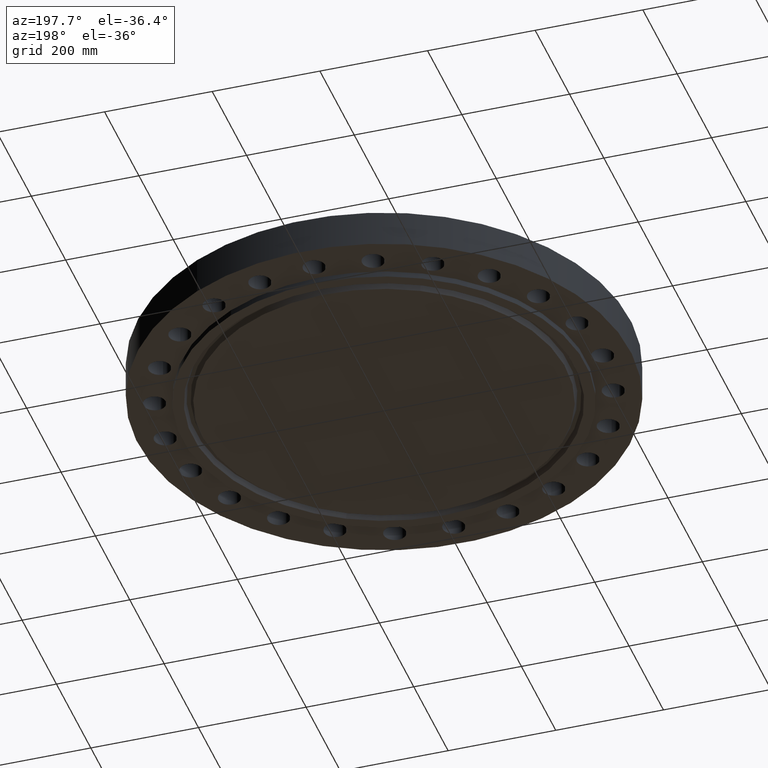
[diagram: clean part render]
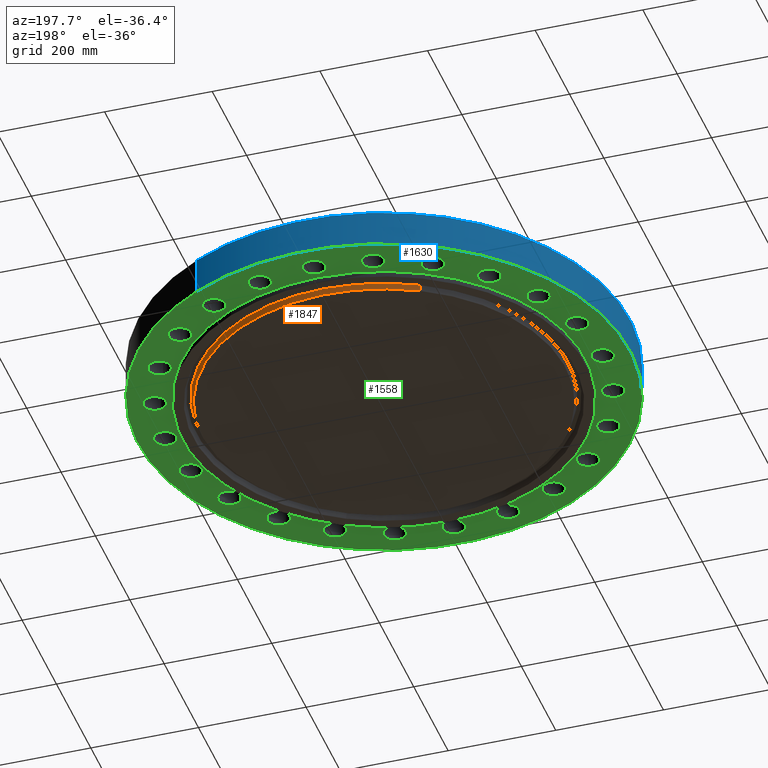
[diagram: same view with three faces highlighted in distinct colors, each labeled with its STEP entity id]
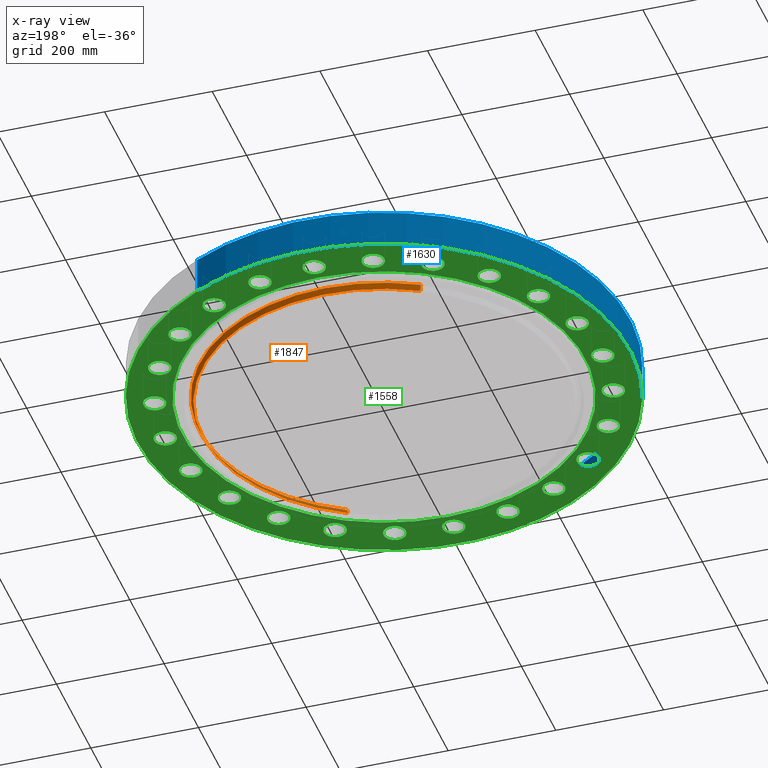
[diagram: x-ray of the same camera — body ghosted, the three highlighted faces saturated]
A machine part, auxiliary view with three faces highlighted in distinct colors.
The next image is the same camera in x-ray (body ghosted, the three faces saturated) — at least one of them is partly hidden behind the body in this view.
Their STEP definitions:

[orange] entity #1847 — the highlighted conical surface has half-angle 23 deg.
#42=AXIS2_PLACEMENT_3D('Circle Axis2P3D',#40,#41,$) ;
#1797=AXIS2_PLACEMENT_3D('Circle Axis2P3D',#1795,#1796,$) ;
#1829=AXIS2_PLACEMENT_3D('Cone Axis2P3D',#1826,#1827,#1828) ;
#40=CARTESIAN_POINT('Axis2P3D Location',(1.1189649382E-015,1.67844740731E-015,-0.437500000002)) ;
#44=CARTESIAN_POINT('Vertex',(-6.37484947301,11.6690836881,-0.437500000002)) ;
#46=CARTESIAN_POINT('Vertex',(6.37484947301,-11.6690836881,-0.437500000002)) ;
#1792=CARTESIAN_POINT('Vertex',(6.45613320915,-11.8178725691,-0.0380793044696)) ;
#1795=CARTESIAN_POINT('Axis2P3D Location',(0.,0.,-0.0380793044696)) ;
#1799=CARTESIAN_POINT('Vertex',(-6.45613320915,11.8178725691,-0.0380793044696)) ;
#1826=CARTESIAN_POINT('Axis2P3D Location',(0.,0.,-0.497500000002)) ;
#1831=CARTESIAN_POINT('Line Origine',(-6.41549134108,11.7434781286,-0.237789652236)) ;
#1836=CARTESIAN_POINT('Line Origine',(6.41549134108,-11.7434781286,-0.237789652236)) ;
#41=DIRECTION('Axis2P3D Direction',(0.,0.,-0.0393700787402)) ;
#1796=DIRECTION('Axis2P3D Direction',(0.,0.,0.0393700787402)) ;
#1827=DIRECTION('Axis2P3D Direction',(0.,0.,0.0393700787402)) ;
#1828=DIRECTION('Axis2P3D XDirection',(-0.0188750212049,0.0345504945626,0.)) ;
#1832=DIRECTION('Vector Direction',(-0.00737505833565,0.0134999537303,0.0362403485611)) ;
#1837=DIRECTION('Vector Direction',(0.00737505833565,-0.0134999537303,0.0362403485611)) ;
#1833=VECTOR('Line Direction',#1832,0.0393700787402) ;
#1838=VECTOR('Line Direction',#1837,0.0393700787402) ;
#1842=ORIENTED_EDGE('',*,*,#1835,.F.) ;
#1843=ORIENTED_EDGE('',*,*,#1801,.F.) ;
#1844=ORIENTED_EDGE('',*,*,#1840,.T.) ;
#1845=ORIENTED_EDGE('',*,*,#48,.F.) ;
#1847=ADVANCED_FACE('PartBody',(#1846),#1830,.T.) ;
#43=CIRCLE('generated circle',#42,13.2968500001) ;
#1798=CIRCLE('generated circle',#1797,13.4663940264) ;
#1830=CONICAL_SURFACE('Cone',#1829,13.2713815111,0.401425727959) ;
#48=EDGE_CURVE('',#45,#47,#43,.T.) ;
#1801=EDGE_CURVE('',#1793,#1800,#1798,.T.) ;
#1835=EDGE_CURVE('',#1800,#45,#1834,.F.) ;
#1840=EDGE_CURVE('',#1793,#47,#1839,.F.) ;
#1841=EDGE_LOOP('',(#1842,#1843,#1844,#1845)) ;
#1846=FACE_OUTER_BOUND('',#1841,.T.) ;
#1834=LINE('Line',#1831,#1833) ;
#1839=LINE('Line',#1836,#1838) ;
#45=VERTEX_POINT('',#44) ;
#47=VERTEX_POINT('',#46) ;
#1793=VERTEX_POINT('',#1792) ;
#1800=VERTEX_POINT('',#1799) ;

[blue] entity #1630 — the highlighted cylindrical surface (partial cylindrical patch) has radius 457.2 mm, axis along (0, 0, -1).
#1414=AXIS2_PLACEMENT_3D('Circle Axis2P3D',#1412,#1413,$) ;
#1591=AXIS2_PLACEMENT_3D('Cylinder Axis2P3D',#1588,#1589,#1590) ;
#1621=AXIS2_PLACEMENT_3D('Circle Axis2P3D',#1619,#1620,$) ;
#1412=CARTESIAN_POINT('Axis2P3D Location',(0.,0.,0.)) ;
#1416=CARTESIAN_POINT('Vertex',(-8.62965969491,-15.7964861141,1.39870617276E-015)) ;
#1418=CARTESIAN_POINT('Vertex',(8.62965969491,15.7964861141,1.39870617276E-015)) ;
#1588=CARTESIAN_POINT('Axis2P3D Location',(0.,0.,1.12625)) ;
#1593=CARTESIAN_POINT('Line Origine',(8.62965969491,15.7964861141,1.34500000001)) ;
#1597=CARTESIAN_POINT('Vertex',(8.62965969491,15.7964861141,2.69000000001)) ;
#1604=CARTESIAN_POINT('Vertex',(-8.62965969491,-15.7964861141,2.69000000001)) ;
#1607=CARTESIAN_POINT('Line Origine',(-8.62965969491,-15.7964861141,1.34500000001)) ;
#1619=CARTESIAN_POINT('Axis2P3D Location',(0.,0.,2.69000000001)) ;
#1413=DIRECTION('Axis2P3D Direction',(0.,0.,-0.0393700787402)) ;
#1589=DIRECTION('Axis2P3D Direction',(0.,0.,-0.0393700787402)) ;
#1590=DIRECTION('Axis2P3D XDirection',(-0.0188750212049,-0.0345504945626,0.)) ;
#1594=DIRECTION('Vector Direction',(0.,0.,-0.0393700787402)) ;
#1608=DIRECTION('Vector Direction',(0.,0.,-0.0393700787402)) ;
#1620=DIRECTION('Axis2P3D Direction',(0.,0.,-0.0393700787402)) ;
#1595=VECTOR('Line Direction',#1594,0.0393700787402) ;
#1609=VECTOR('Line Direction',#1608,0.0393700787402) ;
#1625=ORIENTED_EDGE('',*,*,#1420,.F.) ;
#1626=ORIENTED_EDGE('',*,*,#1611,.T.) ;
#1627=ORIENTED_EDGE('',*,*,#1623,.T.) ;
#1628=ORIENTED_EDGE('',*,*,#1599,.F.) ;
#1630=ADVANCED_FACE('PartBody',(#1629),#1592,.T.) ;
#1415=CIRCLE('generated circle',#1414,18.0000000001) ;
#1622=CIRCLE('generated circle',#1621,18.0000000001) ;
#1592=CYLINDRICAL_SURFACE('generated cylinder',#1591,18.0000000001) ;
#1420=EDGE_CURVE('',#1417,#1419,#1415,.T.) ;
#1599=EDGE_CURVE('',#1419,#1598,#1596,.F.) ;
#1611=EDGE_CURVE('',#1417,#1605,#1610,.F.) ;
#1623=EDGE_CURVE('',#1605,#1598,#1622,.T.) ;
#1624=EDGE_LOOP('',(#1625,#1626,#1627,#1628)) ;
#1629=FACE_OUTER_BOUND('',#1624,.T.) ;
#1596=LINE('Line',#1593,#1595) ;
#1610=LINE('Line',#1607,#1609) ;
#1417=VERTEX_POINT('',#1416) ;
#1419=VERTEX_POINT('',#1418) ;
#1598=VERTEX_POINT('',#1597) ;
#1605=VERTEX_POINT('',#1604) ;

[green] entity #1558 — the highlighted planar face has unit normal (0, 0, -1).
#112=AXIS2_PLACEMENT_3D('Circle Axis2P3D',#110,#111,$) ;
#138=AXIS2_PLACEMENT_3D('Circle Axis2P3D',#136,#137,$) ;
#169=AXIS2_PLACEMENT_3D('Circle Axis2P3D',#167,#168,$) ;
#195=AXIS2_PLACEMENT_3D('Circle Axis2P3D',#193,#194,$) ;
#226=AXIS2_PLACEMENT_3D('Circle Axis2P3D',#224,#225,$) ;
#252=AXIS2_PLACEMENT_3D('Circle Axis2P3D',#250,#251,$) ;
#283=AXIS2_PLACEMENT_3D('Circle Axis2P3D',#281,#282,$) ;
#309=AXIS2_PLACEMENT_3D('Circle Axis2P3D',#307,#308,$) ;
#340=AXIS2_PLACEMENT_3D('Circle Axis2P3D',#338,#339,$) ;
#366=AXIS2_PLACEMENT_3D('Circle Axis2P3D',#364,#365,$) ;
#397=AXIS2_PLACEMENT_3D('Circle Axis2P3D',#395,#396,$) ;
#423=AXIS2_PLACEMENT_3D('Circle Axis2P3D',#421,#422,$) ;
#454=AXIS2_PLACEMENT_3D('Circle Axis2P3D',#452,#453,$) ;
#480=AXIS2_PLACEMENT_3D('Circle Axis2P3D',#478,#479,$) ;
#511=AXIS2_PLACEMENT_3D('Circle Axis2P3D',#509,#510,$) ;
#537=AXIS2_PLACEMENT_3D('Circle Axis2P3D',#535,#536,$) ;
#568=AXIS2_PLACEMENT_3D('Circle Axis2P3D',#566,#567,$) ;
#594=AXIS2_PLACEMENT_3D('Circle Axis2P3D',#592,#593,$) ;
#625=AXIS2_PLACEMENT_3D('Circle Axis2P3D',#623,#624,$) ;
#651=AXIS2_PLACEMENT_3D('Circle Axis2P3D',#649,#650,$) ;
#682=AXIS2_PLACEMENT_3D('Circle Axis2P3D',#680,#681,$) ;
#708=AXIS2_PLACEMENT_3D('Circle Axis2P3D',#706,#707,$) ;
#739=AXIS2_PLACEMENT_3D('Circle Axis2P3D',#737,#738,$) ;
#765=AXIS2_PLACEMENT_3D('Circle Axis2P3D',#763,#764,$) ;
#796=AXIS2_PLACEMENT_3D('Circle Axis2P3D',#794,#795,$) ;
#822=AXIS2_PLACEMENT_3D('Circle Axis2P3D',#820,#821,$) ;
#853=AXIS2_PLACEMENT_3D('Circle Axis2P3D',#851,#852,$) ;
#879=AXIS2_PLACEMENT_3D('Circle Axis2P3D',#877,#878,$) ;
#910=AXIS2_PLACEMENT_3D('Circle Axis2P3D',#908,#909,$) ;
#936=AXIS2_PLACEMENT_3D('Circle Axis2P3D',#934,#935,$) ;
#967=AXIS2_PLACEMENT_3D('Circle Axis2P3D',#965,#966,$) ;
#993=AXIS2_PLACEMENT_3D('Circle Axis2P3D',#991,#992,$) ;
#1024=AXIS2_PLACEMENT_3D('Circle Axis2P3D',#1022,#1023,$) ;
#1050=AXIS2_PLACEMENT_3D('Circle Axis2P3D',#1048,#1049,$) ;
#1081=AXIS2_PLACEMENT_3D('Circle Axis2P3D',#1079,#1080,$) ;
#1107=AXIS2_PLACEMENT_3D('Circle Axis2P3D',#1105,#1106,$) ;
#1138=AXIS2_PLACEMENT_3D('Circle Axis2P3D',#1136,#1137,$) ;
#1164=AXIS2_PLACEMENT_3D('Circle Axis2P3D',#1162,#1163,$) ;
#1195=AXIS2_PLACEMENT_3D('Circle Axis2P3D',#1193,#1194,$) ;
#1221=AXIS2_PLACEMENT_3D('Circle Axis2P3D',#1219,#1220,$) ;
#1252=AXIS2_PLACEMENT_3D('Circle Axis2P3D',#1250,#1251,$) ;
#1278=AXIS2_PLACEMENT_3D('Circle Axis2P3D',#1276,#1277,$) ;
#1309=AXIS2_PLACEMENT_3D('Circle Axis2P3D',#1307,#1308,$) ;
#1335=AXIS2_PLACEMENT_3D('Circle Axis2P3D',#1333,#1334,$) ;
#1366=AXIS2_PLACEMENT_3D('Circle Axis2P3D',#1364,#1365,$) ;
#1392=AXIS2_PLACEMENT_3D('Circle Axis2P3D',#1390,#1391,$) ;
#1410=AXIS2_PLACEMENT_3D('Plane Axis2P3D',#1407,#1408,#1409) ;
#1414=AXIS2_PLACEMENT_3D('Circle Axis2P3D',#1412,#1413,$) ;
#1423=AXIS2_PLACEMENT_3D('Circle Axis2P3D',#1421,#1422,$) ;
#1432=AXIS2_PLACEMENT_3D('Circle Axis2P3D',#1430,#1431,$) ;
#1441=AXIS2_PLACEMENT_3D('Circle Axis2P3D',#1439,#1440,$) ;
#1450=AXIS2_PLACEMENT_3D('Circle Axis2P3D',#1448,#1449,$) ;
#1459=AXIS2_PLACEMENT_3D('Circle Axis2P3D',#1457,#1458,$) ;
#105=CARTESIAN_POINT('Vertex',(4.73083481058,14.8922801797,0.)) ;
#110=CARTESIAN_POINT('Axis2P3D Location',(4.14110472166,15.4548132207,0.)) ;
#114=CARTESIAN_POINT('Vertex',(3.55137463273,16.0173462617,0.)) ;
#136=CARTESIAN_POINT('Axis2P3D Location',(4.14110472166,15.4548132207,0.)) ;
#162=CARTESIAN_POINT('Vertex',(-0.715229787944,-15.6092681861,0.)) ;
#167=CARTESIAN_POINT('Axis2P3D Location',(1.95943487864E-015,-16.0000000001,0.)) ;
#171=CARTESIAN_POINT('Vertex',(0.715229787944,-16.390731814,0.)) ;
#193=CARTESIAN_POINT('Axis2P3D Location',(1.95943487864E-015,-16.0000000001,0.)) ;
#219=CARTESIAN_POINT('Vertex',(-3.34911696277,15.2625103612,0.)) ;
#224=CARTESIAN_POINT('Axis2P3D Location',(-4.14110472166,15.4548132207,0.)) ;
#228=CARTESIAN_POINT('Vertex',(-4.93309248054,15.6471160802,0.)) ;
#250=CARTESIAN_POINT('Axis2P3D Location',(-4.14110472166,15.4548132207,0.)) ;
#276=CARTESIAN_POINT('Vertex',(3.34911696277,-15.2625103612,0.)) ;
#281=CARTESIAN_POINT('Axis2P3D Location',(4.14110472166,-15.4548132207,0.)) ;
#285=CARTESIAN_POINT('Vertex',(4.93309248054,-15.6471160802,0.)) ;
#307=CARTESIAN_POINT('Axis2P3D Location',(4.14110472166,-15.4548132207,0.)) ;
#333=CARTESIAN_POINT('Vertex',(-7.18522692715,13.8756376776,0.)) ;
#338=CARTESIAN_POINT('Axis2P3D Location',(-8.00000000003,13.8564064606,0.)) ;
#342=CARTESIAN_POINT('Vertex',(-8.81477307292,13.8371752436,0.)) ;
#364=CARTESIAN_POINT('Axis2P3D Location',(-8.00000000003,13.8564064606,0.)) ;
#390=CARTESIAN_POINT('Vertex',(7.18522692715,-13.8756376776,0.)) ;
#395=CARTESIAN_POINT('Axis2P3D Location',(8.00000000003,-13.8564064606,0.)) ;
#399=CARTESIAN_POINT('Vertex',(8.81477307292,-13.8371752436,0.)) ;
#421=CARTESIAN_POINT('Axis2P3D Location',(8.00000000003,-13.8564064606,0.)) ;
#447=CARTESIAN_POINT('Vertex',(-10.5316755506,11.5431632169,0.)) ;
#452=CARTESIAN_POINT('Axis2P3D Location',(-11.313708499,11.313708499,0.)) ;
#456=CARTESIAN_POINT('Vertex',(-12.0957414475,11.0842537811,0.)) ;
#478=CARTESIAN_POINT('Axis2P3D Location',(-11.313708499,11.313708499,0.)) ;
#504=CARTESIAN_POINT('Vertex',(10.5316755506,-11.5431632169,0.)) ;
#509=CARTESIAN_POINT('Axis2P3D Location',(11.313708499,-11.313708499,0.)) ;
#513=CARTESIAN_POINT('Vertex',(12.0957414475,-11.0842537811,0.)) ;
#535=CARTESIAN_POINT('Axis2P3D Location',(11.313708499,-11.313708499,0.)) ;
#561=CARTESIAN_POINT('Vertex',(-13.1604078897,8.42404125895,0.)) ;
#566=CARTESIAN_POINT('Axis2P3D Location',(-13.8564064606,8.00000000003,0.)) ;
#570=CARTESIAN_POINT('Vertex',(-14.5524050315,7.57595874111,0.)) ;
#592=CARTESIAN_POINT('Axis2P3D Location',(-13.8564064606,8.00000000003,0.)) ;
#618=CARTESIAN_POINT('Vertex',(13.1604078897,-8.42404125895,-2.23792987641E-015)) ;
#623=CARTESIAN_POINT('Axis2P3D Location',(13.8564064606,-8.00000000003,-2.23792987641E-015)) ;
#627=CARTESIAN_POINT('Vertex',(14.5524050315,-7.57595874111,0.)) ;
#649=CARTESIAN_POINT('Axis2P3D Location',(13.8564064606,-8.00000000003,-2.23792987641E-015)) ;
#675=CARTESIAN_POINT('Vertex',(-14.8922801797,4.73083481058,0.)) ;
#680=CARTESIAN_POINT('Axis2P3D Location',(-15.4548132207,4.14110472166,0.)) ;
#684=CARTESIAN_POINT('Vertex',(-16.0173462617,3.55137463273,0.)) ;
#706=CARTESIAN_POINT('Axis2P3D Location',(-15.4548132207,4.14110472166,0.)) ;
#732=CARTESIAN_POINT('Vertex',(14.8922801797,-4.73083481058,-1.1189649382E-015)) ;
#737=CARTESIAN_POINT('Axis2P3D Location',(15.4548132207,-4.14110472166,-1.1189649382E-015)) ;
#741=CARTESIAN_POINT('Vertex',(16.0173462617,-3.55137463273,0.)) ;
#763=CARTESIAN_POINT('Axis2P3D Location',(15.4548132207,-4.14110472166,-1.1189649382E-015)) ;
#789=CARTESIAN_POINT('Vertex',(-15.6092681861,0.715229787944,0.)) ;
#794=CARTESIAN_POINT('Axis2P3D Location',(-16.0000000001,-7.01222441556E-016,0.)) ;
#798=CARTESIAN_POINT('Vertex',(-16.390731814,-0.715229787944,0.)) ;
#820=CARTESIAN_POINT('Axis2P3D Location',(-16.0000000001,-7.01222441556E-016,0.)) ;
#846=CARTESIAN_POINT('Vertex',(15.6092681861,-0.715229787944,0.)) ;
#851=CARTESIAN_POINT('Axis2P3D Location',(16.0000000001,9.79717439322E-016,0.)) ;
#855=CARTESIAN_POINT('Vertex',(16.390731814,0.715229787944,0.)) ;
#877=CARTESIAN_POINT('Axis2P3D Location',(16.0000000001,9.79717439322E-016,0.)) ;
#903=CARTESIAN_POINT('Vertex',(-15.2625103612,-3.34911696277,0.)) ;
#908=CARTESIAN_POINT('Axis2P3D Location',(-15.4548132207,-4.14110472166,0.)) ;
#912=CARTESIAN_POINT('Vertex',(-15.6471160802,-4.93309248054,0.)) ;
#934=CARTESIAN_POINT('Axis2P3D Location',(-15.4548132207,-4.14110472166,0.)) ;
#960=CARTESIAN_POINT('Vertex',(15.2625103612,3.34911696277,0.)) ;
#965=CARTESIAN_POINT('Axis2P3D Location',(15.4548132207,4.14110472166,0.)) ;
#969=CARTESIAN_POINT('Vertex',(15.6471160802,4.93309248054,0.)) ;
#991=CARTESIAN_POINT('Axis2P3D Location',(15.4548132207,4.14110472166,0.)) ;
#1017=CARTESIAN_POINT('Vertex',(-13.8756376776,-7.18522692715,0.)) ;
#1022=CARTESIAN_POINT('Axis2P3D Location',(-13.8564064606,-8.00000000003,0.)) ;
#1026=CARTESIAN_POINT('Vertex',(-13.8371752436,-8.81477307292,0.)) ;
#1048=CARTESIAN_POINT('Axis2P3D Location',(-13.8564064606,-8.00000000003,0.)) ;
#1074=CARTESIAN_POINT('Vertex',(13.8756376776,7.18522692715,0.)) ;
#1079=CARTESIAN_POINT('Axis2P3D Location',(13.8564064606,8.00000000003,0.)) ;
#1083=CARTESIAN_POINT('Vertex',(13.8371752436,8.81477307292,0.)) ;
#1105=CARTESIAN_POINT('Axis2P3D Location',(13.8564064606,8.00000000003,0.)) ;
#1131=CARTESIAN_POINT('Vertex',(-11.5431632169,-10.5316755506,0.)) ;
#1136=CARTESIAN_POINT('Axis2P3D Location',(-11.313708499,-11.313708499,0.)) ;
#1140=CARTESIAN_POINT('Vertex',(-11.0842537811,-12.0957414475,0.)) ;
#1162=CARTESIAN_POINT('Axis2P3D Location',(-11.313708499,-11.313708499,0.)) ;
#1188=CARTESIAN_POINT('Vertex',(11.5431632169,10.5316755506,0.)) ;
#1193=CARTESIAN_POINT('Axis2P3D Location',(11.313708499,11.313708499,0.)) ;
#1197=CARTESIAN_POINT('Vertex',(11.0842537811,12.0957414475,0.)) ;
#1219=CARTESIAN_POINT('Axis2P3D Location',(11.313708499,11.313708499,0.)) ;
#1245=CARTESIAN_POINT('Vertex',(-8.42404125895,-13.1604078897,0.)) ;
#1250=CARTESIAN_POINT('Axis2P3D Location',(-8.00000000003,-13.8564064606,0.)) ;
#1254=CARTESIAN_POINT('Vertex',(-7.57595874111,-14.5524050315,0.)) ;
#1276=CARTESIAN_POINT('Axis2P3D Location',(-8.00000000003,-13.8564064606,0.)) ;
#1302=CARTESIAN_POINT('Vertex',(8.42404125895,13.1604078897,0.)) ;
#1307=CARTESIAN_POINT('Axis2P3D Location',(8.00000000003,13.8564064606,0.)) ;
#1311=CARTESIAN_POINT('Vertex',(7.57595874111,14.5524050315,0.)) ;
#1333=CARTESIAN_POINT('Axis2P3D Location',(8.00000000003,13.8564064606,0.)) ;
#1359=CARTESIAN_POINT('Vertex',(-4.73083481058,-14.8922801797,0.)) ;
#1364=CARTESIAN_POINT('Axis2P3D Location',(-4.14110472166,-15.4548132207,0.)) ;
#1368=CARTESIAN_POINT('Vertex',(-3.55137463273,-16.0173462617,0.)) ;
#1390=CARTESIAN_POINT('Axis2P3D Location',(-4.14110472166,-15.4548132207,0.)) ;
#1407=CARTESIAN_POINT('Axis2P3D Location',(0.,14.7500000001,0.)) ;
#1412=CARTESIAN_POINT('Axis2P3D Location',(0.,0.,0.)) ;
#1416=CARTESIAN_POINT('Vertex',(-8.62965969491,-15.7964861141,1.39870617276E-015)) ;
#1418=CARTESIAN_POINT('Vertex',(8.62965969491,15.7964861141,1.39870617276E-015)) ;
#1421=CARTESIAN_POINT('Axis2P3D Location',(0.,0.,0.)) ;
#1430=CARTESIAN_POINT('Axis2P3D Location',(3.84644197508E-016,16.0000000001,0.)) ;
#1434=CARTESIAN_POINT('Vertex',(0.715229787944,15.6092681861,0.)) ;
#1436=CARTESIAN_POINT('Vertex',(-0.715229787944,16.390731814,0.)) ;
#1439=CARTESIAN_POINT('Axis2P3D Location',(1.39870617276E-016,16.0000000001,0.)) ;
#1448=CARTESIAN_POINT('Axis2P3D Location',(0.,0.,0.)) ;
#1452=CARTESIAN_POINT('Vertex',(7.07152669444,12.9443427879,1.67844740731E-015)) ;
#1454=CARTESIAN_POINT('Vertex',(-7.07152669444,-12.9443427879,1.67844740731E-015)) ;
#1457=CARTESIAN_POINT('Axis2P3D Location',(0.,0.,0.)) ;
#111=DIRECTION('Axis2P3D Direction',(0.,-0.,-0.0393700787402)) ;
#137=DIRECTION('Axis2P3D Direction',(0.,-0.,-0.0393700787402)) ;
#168=DIRECTION('Axis2P3D Direction',(-0.,0.,-0.0393700787402)) ;
#194=DIRECTION('Axis2P3D Direction',(-0.,0.,-0.0393700787402)) ;
#225=DIRECTION('Axis2P3D Direction',(0.,0.,-0.0393700787402)) ;
#251=DIRECTION('Axis2P3D Direction',(0.,0.,-0.0393700787402)) ;
#282=DIRECTION('Axis2P3D Direction',(-0.,0.,-0.0393700787402)) ;
#308=DIRECTION('Axis2P3D Direction',(-0.,0.,-0.0393700787402)) ;
#339=DIRECTION('Axis2P3D Direction',(0.,0.,-0.0393700787402)) ;
#365=DIRECTION('Axis2P3D Direction',(0.,0.,-0.0393700787402)) ;
#396=DIRECTION('Axis2P3D Direction',(-0.,0.,-0.0393700787402)) ;
#422=DIRECTION('Axis2P3D Direction',(-0.,0.,-0.0393700787402)) ;
#453=DIRECTION('Axis2P3D Direction',(0.,0.,-0.0393700787402)) ;
#479=DIRECTION('Axis2P3D Direction',(0.,0.,-0.0393700787402)) ;
#510=DIRECTION('Axis2P3D Direction',(-0.,0.,-0.0393700787402)) ;
#536=DIRECTION('Axis2P3D Direction',(-0.,0.,-0.0393700787402)) ;
#567=DIRECTION('Axis2P3D Direction',(0.,0.,-0.0393700787402)) ;
#593=DIRECTION('Axis2P3D Direction',(0.,0.,-0.0393700787402)) ;
#624=DIRECTION('Axis2P3D Direction',(-0.,0.,-0.0393700787402)) ;
#650=DIRECTION('Axis2P3D Direction',(-0.,0.,-0.0393700787402)) ;
#681=DIRECTION('Axis2P3D Direction',(0.,0.,-0.0393700787402)) ;
#707=DIRECTION('Axis2P3D Direction',(0.,0.,-0.0393700787402)) ;
#738=DIRECTION('Axis2P3D Direction',(-0.,0.,-0.0393700787402)) ;
#764=DIRECTION('Axis2P3D Direction',(-0.,0.,-0.0393700787402)) ;
#795=DIRECTION('Axis2P3D Direction',(0.,0.,-0.0393700787402)) ;
#821=DIRECTION('Axis2P3D Direction',(0.,0.,-0.0393700787402)) ;
#852=DIRECTION('Axis2P3D Direction',(0.,-0.,-0.0393700787402)) ;
#878=DIRECTION('Axis2P3D Direction',(0.,-0.,-0.0393700787402)) ;
#909=DIRECTION('Axis2P3D Direction',(0.,0.,-0.0393700787402)) ;
#935=DIRECTION('Axis2P3D Direction',(0.,0.,-0.0393700787402)) ;
#966=DIRECTION('Axis2P3D Direction',(0.,-0.,-0.0393700787402)) ;
#992=DIRECTION('Axis2P3D Direction',(0.,-0.,-0.0393700787402)) ;
#1023=DIRECTION('Axis2P3D Direction',(0.,0.,-0.0393700787402)) ;
#1049=DIRECTION('Axis2P3D Direction',(0.,0.,-0.0393700787402)) ;
#1080=DIRECTION('Axis2P3D Direction',(0.,-0.,-0.0393700787402)) ;
#1106=DIRECTION('Axis2P3D Direction',(0.,-0.,-0.0393700787402)) ;
#1137=DIRECTION('Axis2P3D Direction',(0.,0.,-0.0393700787402)) ;
#1163=DIRECTION('Axis2P3D Direction',(0.,0.,-0.0393700787402)) ;
#1194=DIRECTION('Axis2P3D Direction',(0.,-0.,-0.0393700787402)) ;
#1220=DIRECTION('Axis2P3D Direction',(0.,-0.,-0.0393700787402)) ;
#1251=DIRECTION('Axis2P3D Direction',(0.,0.,-0.0393700787402)) ;
#1277=DIRECTION('Axis2P3D Direction',(0.,0.,-0.0393700787402)) ;
#1308=DIRECTION('Axis2P3D Direction',(0.,-0.,-0.0393700787402)) ;
#1334=DIRECTION('Axis2P3D Direction',(0.,-0.,-0.0393700787402)) ;
#1365=DIRECTION('Axis2P3D Direction',(0.,0.,-0.0393700787402)) ;
#1391=DIRECTION('Axis2P3D Direction',(0.,0.,-0.0393700787402)) ;
#1408=DIRECTION('Axis2P3D Direction',(0.,0.,-0.0393700787402)) ;
#1409=DIRECTION('Axis2P3D XDirection',(0.0393700787402,0.,0.)) ;
#1413=DIRECTION('Axis2P3D Direction',(0.,0.,-0.0393700787402)) ;
#1422=DIRECTION('Axis2P3D Direction',(0.,0.,-0.0393700787402)) ;
#1431=DIRECTION('Axis2P3D Direction',(0.,0.,-0.0393700787402)) ;
#1440=DIRECTION('Axis2P3D Direction',(0.,0.,-0.0393700787402)) ;
#1449=DIRECTION('Axis2P3D Direction',(0.,0.,-0.0393700787402)) ;
#1458=DIRECTION('Axis2P3D Direction',(0.,0.,-0.0393700787402)) ;
#1427=ORIENTED_EDGE('',*,*,#1420,.T.) ;
#1428=ORIENTED_EDGE('',*,*,#1425,.T.) ;
#1445=ORIENTED_EDGE('',*,*,#1438,.F.) ;
#1446=ORIENTED_EDGE('',*,*,#1443,.F.) ;
#1463=ORIENTED_EDGE('',*,*,#1456,.F.) ;
#1464=ORIENTED_EDGE('',*,*,#1461,.F.) ;
#1467=ORIENTED_EDGE('',*,*,#140,.F.) ;
#1468=ORIENTED_EDGE('',*,*,#116,.F.) ;
#1471=ORIENTED_EDGE('',*,*,#1337,.F.) ;
#1472=ORIENTED_EDGE('',*,*,#1313,.F.) ;
#1475=ORIENTED_EDGE('',*,*,#1223,.F.) ;
#1476=ORIENTED_EDGE('',*,*,#1199,.F.) ;
#1479=ORIENTED_EDGE('',*,*,#1109,.F.) ;
#1480=ORIENTED_EDGE('',*,*,#1085,.F.) ;
#1483=ORIENTED_EDGE('',*,*,#995,.F.) ;
#1484=ORIENTED_EDGE('',*,*,#971,.F.) ;
#1487=ORIENTED_EDGE('',*,*,#881,.F.) ;
#1488=ORIENTED_EDGE('',*,*,#857,.F.) ;
#1491=ORIENTED_EDGE('',*,*,#767,.F.) ;
#1492=ORIENTED_EDGE('',*,*,#743,.F.) ;
#1495=ORIENTED_EDGE('',*,*,#653,.F.) ;
#1496=ORIENTED_EDGE('',*,*,#629,.F.) ;
#1499=ORIENTED_EDGE('',*,*,#539,.F.) ;
#1500=ORIENTED_EDGE('',*,*,#515,.F.) ;
#1503=ORIENTED_EDGE('',*,*,#425,.F.) ;
#1504=ORIENTED_EDGE('',*,*,#401,.F.) ;
#1507=ORIENTED_EDGE('',*,*,#311,.F.) ;
#1508=ORIENTED_EDGE('',*,*,#287,.F.) ;
#1511=ORIENTED_EDGE('',*,*,#197,.F.) ;
#1512=ORIENTED_EDGE('',*,*,#173,.F.) ;
#1515=ORIENTED_EDGE('',*,*,#1394,.F.) ;
#1516=ORIENTED_EDGE('',*,*,#1370,.F.) ;
#1519=ORIENTED_EDGE('',*,*,#1280,.F.) ;
#1520=ORIENTED_EDGE('',*,*,#1256,.F.) ;
#1523=ORIENTED_EDGE('',*,*,#1166,.F.) ;
#1524=ORIENTED_EDGE('',*,*,#1142,.F.) ;
#1527=ORIENTED_EDGE('',*,*,#1052,.F.) ;
#1528=ORIENTED_EDGE('',*,*,#1028,.F.) ;
#1531=ORIENTED_EDGE('',*,*,#938,.F.) ;
#1532=ORIENTED_EDGE('',*,*,#914,.F.) ;
#1535=ORIENTED_EDGE('',*,*,#824,.F.) ;
#1536=ORIENTED_EDGE('',*,*,#800,.F.) ;
#1539=ORIENTED_EDGE('',*,*,#710,.F.) ;
#1540=ORIENTED_EDGE('',*,*,#686,.F.) ;
#1543=ORIENTED_EDGE('',*,*,#596,.F.) ;
#1544=ORIENTED_EDGE('',*,*,#572,.F.) ;
#1547=ORIENTED_EDGE('',*,*,#482,.F.) ;
#1548=ORIENTED_EDGE('',*,*,#458,.F.) ;
#1551=ORIENTED_EDGE('',*,*,#368,.F.) ;
#1552=ORIENTED_EDGE('',*,*,#344,.F.) ;
#1555=ORIENTED_EDGE('',*,*,#254,.F.) ;
#1556=ORIENTED_EDGE('',*,*,#230,.F.) ;
#1447=FACE_BOUND('',#1444,.T.) ;
#1465=FACE_BOUND('',#1462,.T.) ;
#1469=FACE_BOUND('',#1466,.T.) ;
#1473=FACE_BOUND('',#1470,.T.) ;
#1477=FACE_BOUND('',#1474,.T.) ;
#1481=FACE_BOUND('',#1478,.T.) ;
#1485=FACE_BOUND('',#1482,.T.) ;
#1489=FACE_BOUND('',#1486,.T.) ;
#1493=FACE_BOUND('',#1490,.T.) ;
#1497=FACE_BOUND('',#1494,.T.) ;
#1501=FACE_BOUND('',#1498,.T.) ;
#1505=FACE_BOUND('',#1502,.T.) ;
#1509=FACE_BOUND('',#1506,.T.) ;
#1513=FACE_BOUND('',#1510,.T.) ;
#1517=FACE_BOUND('',#1514,.T.) ;
#1521=FACE_BOUND('',#1518,.T.) ;
#1525=FACE_BOUND('',#1522,.T.) ;
#1529=FACE_BOUND('',#1526,.T.) ;
#1533=FACE_BOUND('',#1530,.T.) ;
#1537=FACE_BOUND('',#1534,.T.) ;
#1541=FACE_BOUND('',#1538,.T.) ;
#1545=FACE_BOUND('',#1542,.T.) ;
#1549=FACE_BOUND('',#1546,.T.) ;
#1553=FACE_BOUND('',#1550,.T.) ;
#1557=FACE_BOUND('',#1554,.T.) ;
#1558=ADVANCED_FACE('PartBody',(#1429,#1447,#1465,#1469,#1473,#1477,#1481,#1485,#1489,#1493,#1497,#1501,#1505,#1509,#1513,#1517,#1521,#1525,#1529,#1533,#1537,#1541,#1545,#1549,#1553,#1557),#1411,.T.) ;
#113=CIRCLE('generated circle',#112,0.815000000003) ;
#139=CIRCLE('generated circle',#138,0.815000000003) ;
#170=CIRCLE('generated circle',#169,0.815000000003) ;
#196=CIRCLE('generated circle',#195,0.815000000003) ;
#227=CIRCLE('generated circle',#226,0.815000000003) ;
#253=CIRCLE('generated circle',#252,0.815000000003) ;
#284=CIRCLE('generated circle',#283,0.815000000003) ;
#310=CIRCLE('generated circle',#309,0.815000000003) ;
#341=CIRCLE('generated circle',#340,0.815000000003) ;
#367=CIRCLE('generated circle',#366,0.815000000003) ;
#398=CIRCLE('generated circle',#397,0.815000000003) ;
#424=CIRCLE('generated circle',#423,0.815000000003) ;
#455=CIRCLE('generated circle',#454,0.815000000003) ;
#481=CIRCLE('generated circle',#480,0.815000000003) ;
#512=CIRCLE('generated circle',#511,0.815000000003) ;
#538=CIRCLE('generated circle',#537,0.815000000003) ;
#569=CIRCLE('generated circle',#568,0.815000000003) ;
#595=CIRCLE('generated circle',#594,0.815000000003) ;
#626=CIRCLE('generated circle',#625,0.815000000003) ;
#652=CIRCLE('generated circle',#651,0.815000000003) ;
#683=CIRCLE('generated circle',#682,0.815000000003) ;
#709=CIRCLE('generated circle',#708,0.815000000003) ;
#740=CIRCLE('generated circle',#739,0.815000000003) ;
#766=CIRCLE('generated circle',#765,0.815000000003) ;
#797=CIRCLE('generated circle',#796,0.815000000003) ;
#823=CIRCLE('generated circle',#822,0.815000000003) ;
#854=CIRCLE('generated circle',#853,0.815000000003) ;
#880=CIRCLE('generated circle',#879,0.815000000003) ;
#911=CIRCLE('generated circle',#910,0.815000000003) ;
#937=CIRCLE('generated circle',#936,0.815000000003) ;
#968=CIRCLE('generated circle',#967,0.815000000003) ;
#994=CIRCLE('generated circle',#993,0.815000000003) ;
#1025=CIRCLE('generated circle',#1024,0.815000000003) ;
#1051=CIRCLE('generated circle',#1050,0.815000000003) ;
#1082=CIRCLE('generated circle',#1081,0.815000000003) ;
#1108=CIRCLE('generated circle',#1107,0.815000000003) ;
#1139=CIRCLE('generated circle',#1138,0.815000000003) ;
#1165=CIRCLE('generated circle',#1164,0.815000000003) ;
#1196=CIRCLE('generated circle',#1195,0.815000000003) ;
#1222=CIRCLE('generated circle',#1221,0.815000000003) ;
#1253=CIRCLE('generated circle',#1252,0.815000000003) ;
#1279=CIRCLE('generated circle',#1278,0.815000000003) ;
#1310=CIRCLE('generated circle',#1309,0.815000000003) ;
#1336=CIRCLE('generated circle',#1335,0.815000000003) ;
#1367=CIRCLE('generated circle',#1366,0.815000000003) ;
#1393=CIRCLE('generated circle',#1392,0.815000000003) ;
#1415=CIRCLE('generated circle',#1414,18.0000000001) ;
#1424=CIRCLE('generated circle',#1423,18.0000000001) ;
#1433=CIRCLE('generated circle',#1432,0.815000000003) ;
#1442=CIRCLE('generated circle',#1441,0.815000000003) ;
#1451=CIRCLE('generated circle',#1450,14.7500000001) ;
#1460=CIRCLE('generated circle',#1459,14.7500000001) ;
#116=EDGE_CURVE('',#106,#115,#113,.T.) ;
#140=EDGE_CURVE('',#115,#106,#139,.T.) ;
#173=EDGE_CURVE('',#163,#172,#170,.T.) ;
#197=EDGE_CURVE('',#172,#163,#196,.T.) ;
#230=EDGE_CURVE('',#220,#229,#227,.T.) ;
#254=EDGE_CURVE('',#229,#220,#253,.T.) ;
#287=EDGE_CURVE('',#277,#286,#284,.T.) ;
#311=EDGE_CURVE('',#286,#277,#310,.T.) ;
#344=EDGE_CURVE('',#334,#343,#341,.T.) ;
#368=EDGE_CURVE('',#343,#334,#367,.T.) ;
#401=EDGE_CURVE('',#391,#400,#398,.T.) ;
#425=EDGE_CURVE('',#400,#391,#424,.T.) ;
#458=EDGE_CURVE('',#448,#457,#455,.T.) ;
#482=EDGE_CURVE('',#457,#448,#481,.T.) ;
#515=EDGE_CURVE('',#505,#514,#512,.T.) ;
#539=EDGE_CURVE('',#514,#505,#538,.T.) ;
#572=EDGE_CURVE('',#562,#571,#569,.T.) ;
#596=EDGE_CURVE('',#571,#562,#595,.T.) ;
#629=EDGE_CURVE('',#619,#628,#626,.T.) ;
#653=EDGE_CURVE('',#628,#619,#652,.T.) ;
#686=EDGE_CURVE('',#676,#685,#683,.T.) ;
#710=EDGE_CURVE('',#685,#676,#709,.T.) ;
#743=EDGE_CURVE('',#733,#742,#740,.T.) ;
#767=EDGE_CURVE('',#742,#733,#766,.T.) ;
#800=EDGE_CURVE('',#790,#799,#797,.T.) ;
#824=EDGE_CURVE('',#799,#790,#823,.T.) ;
#857=EDGE_CURVE('',#847,#856,#854,.T.) ;
#881=EDGE_CURVE('',#856,#847,#880,.T.) ;
#914=EDGE_CURVE('',#904,#913,#911,.T.) ;
#938=EDGE_CURVE('',#913,#904,#937,.T.) ;
#971=EDGE_CURVE('',#961,#970,#968,.T.) ;
#995=EDGE_CURVE('',#970,#961,#994,.T.) ;
#1028=EDGE_CURVE('',#1018,#1027,#1025,.T.) ;
#1052=EDGE_CURVE('',#1027,#1018,#1051,.T.) ;
#1085=EDGE_CURVE('',#1075,#1084,#1082,.T.) ;
#1109=EDGE_CURVE('',#1084,#1075,#1108,.T.) ;
#1142=EDGE_CURVE('',#1132,#1141,#1139,.T.) ;
#1166=EDGE_CURVE('',#1141,#1132,#1165,.T.) ;
#1199=EDGE_CURVE('',#1189,#1198,#1196,.T.) ;
#1223=EDGE_CURVE('',#1198,#1189,#1222,.T.) ;
#1256=EDGE_CURVE('',#1246,#1255,#1253,.T.) ;
#1280=EDGE_CURVE('',#1255,#1246,#1279,.T.) ;
#1313=EDGE_CURVE('',#1303,#1312,#1310,.T.) ;
#1337=EDGE_CURVE('',#1312,#1303,#1336,.T.) ;
#1370=EDGE_CURVE('',#1360,#1369,#1367,.T.) ;
#1394=EDGE_CURVE('',#1369,#1360,#1393,.T.) ;
#1420=EDGE_CURVE('',#1417,#1419,#1415,.T.) ;
#1425=EDGE_CURVE('',#1419,#1417,#1424,.T.) ;
#1438=EDGE_CURVE('',#1435,#1437,#1433,.T.) ;
#1443=EDGE_CURVE('',#1437,#1435,#1442,.T.) ;
#1456=EDGE_CURVE('',#1453,#1455,#1451,.T.) ;
#1461=EDGE_CURVE('',#1455,#1453,#1460,.T.) ;
#1426=EDGE_LOOP('',(#1427,#1428)) ;
#1444=EDGE_LOOP('',(#1445,#1446)) ;
#1462=EDGE_LOOP('',(#1463,#1464)) ;
#1466=EDGE_LOOP('',(#1467,#1468)) ;
#1470=EDGE_LOOP('',(#1471,#1472)) ;
#1474=EDGE_LOOP('',(#1475,#1476)) ;
#1478=EDGE_LOOP('',(#1479,#1480)) ;
#1482=EDGE_LOOP('',(#1483,#1484)) ;
#1486=EDGE_LOOP('',(#1487,#1488)) ;
#1490=EDGE_LOOP('',(#1491,#1492)) ;
#1494=EDGE_LOOP('',(#1495,#1496)) ;
#1498=EDGE_LOOP('',(#1499,#1500)) ;
#1502=EDGE_LOOP('',(#1503,#1504)) ;
#1506=EDGE_LOOP('',(#1507,#1508)) ;
#1510=EDGE_LOOP('',(#1511,#1512)) ;
#1514=EDGE_LOOP('',(#1515,#1516)) ;
#1518=EDGE_LOOP('',(#1519,#1520)) ;
#1522=EDGE_LOOP('',(#1523,#1524)) ;
#1526=EDGE_LOOP('',(#1527,#1528)) ;
#1530=EDGE_LOOP('',(#1531,#1532)) ;
#1534=EDGE_LOOP('',(#1535,#1536)) ;
#1538=EDGE_LOOP('',(#1539,#1540)) ;
#1542=EDGE_LOOP('',(#1543,#1544)) ;
#1546=EDGE_LOOP('',(#1547,#1548)) ;
#1550=EDGE_LOOP('',(#1551,#1552)) ;
#1554=EDGE_LOOP('',(#1555,#1556)) ;
#1429=FACE_OUTER_BOUND('',#1426,.T.) ;
#1411=PLANE('',#1410) ;
#106=VERTEX_POINT('',#105) ;
#115=VERTEX_POINT('',#114) ;
#163=VERTEX_POINT('',#162) ;
#172=VERTEX_POINT('',#171) ;
#220=VERTEX_POINT('',#219) ;
#229=VERTEX_POINT('',#228) ;
#277=VERTEX_POINT('',#276) ;
#286=VERTEX_POINT('',#285) ;
#334=VERTEX_POINT('',#333) ;
#343=VERTEX_POINT('',#342) ;
#391=VERTEX_POINT('',#390) ;
#400=VERTEX_POINT('',#399) ;
#448=VERTEX_POINT('',#447) ;
#457=VERTEX_POINT('',#456) ;
#505=VERTEX_POINT('',#504) ;
#514=VERTEX_POINT('',#513) ;
#562=VERTEX_POINT('',#561) ;
#571=VERTEX_POINT('',#570) ;
#619=VERTEX_POINT('',#618) ;
#628=VERTEX_POINT('',#627) ;
#676=VERTEX_POINT('',#675) ;
#685=VERTEX_POINT('',#684) ;
#733=VERTEX_POINT('',#732) ;
#742=VERTEX_POINT('',#741) ;
#790=VERTEX_POINT('',#789) ;
#799=VERTEX_POINT('',#798) ;
#847=VERTEX_POINT('',#846) ;
#856=VERTEX_POINT('',#855) ;
#904=VERTEX_POINT('',#903) ;
#913=VERTEX_POINT('',#912) ;
#961=VERTEX_POINT('',#960) ;
#970=VERTEX_POINT('',#969) ;
#1018=VERTEX_POINT('',#1017) ;
#1027=VERTEX_POINT('',#1026) ;
#1075=VERTEX_POINT('',#1074) ;
#1084=VERTEX_POINT('',#1083) ;
#1132=VERTEX_POINT('',#1131) ;
#1141=VERTEX_POINT('',#1140) ;
#1189=VERTEX_POINT('',#1188) ;
#1198=VERTEX_POINT('',#1197) ;
#1246=VERTEX_POINT('',#1245) ;
#1255=VERTEX_POINT('',#1254) ;
#1303=VERTEX_POINT('',#1302) ;
#1312=VERTEX_POINT('',#1311) ;
#1360=VERTEX_POINT('',#1359) ;
#1369=VERTEX_POINT('',#1368) ;
#1417=VERTEX_POINT('',#1416) ;
#1419=VERTEX_POINT('',#1418) ;
#1435=VERTEX_POINT('',#1434) ;
#1437=VERTEX_POINT('',#1436) ;
#1453=VERTEX_POINT('',#1452) ;
#1455=VERTEX_POINT('',#1454) ;